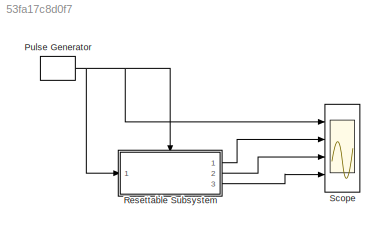
MODEL slx_53fa17c8d0f7
KIND model
CONFIG AbsTol = auto
CONFIG FixedStep = 1
CONFIG MaxStep = auto
CONFIG MinStep = auto
CONFIG RelTol = 1e-3
CONFIG SampleTimeConstraint = Unconstrained
CONFIG Solver = FixedStepDiscrete
CONFIG SolverMode = SingleTasking
CONFIG SolverName = FixedStepDiscrete
CONFIG StartTime = 0.0
CONFIG StopTime = 100
BLOCK [DiscretePulseGenerator] Pulse Generator
  AttributesFormatString = Period: %<period>\nDuty cycle: %<pulsewidth>%
  Period = 4
  Ports = [0, 1]
  PulseWidth = 2
  SampleTime = -1
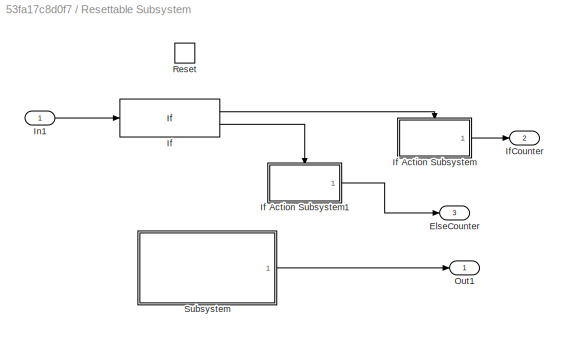
BLOCK [SubSystem] Resettable Subsystem
  Ports = [1, 3, 0, 0, 0, 0, 0, 0, 1]
  RequestExecContextInheritance = off
  TreatAsAtomicUnit = on
  Variant = off
BLOCK [Outport] Resettable Subsystem/ElseCounter
  IconDisplay = Port number
  Port = 3
BLOCK [If] Resettable Subsystem/If
  IfExpression = u1
  Ports = [1, 2]
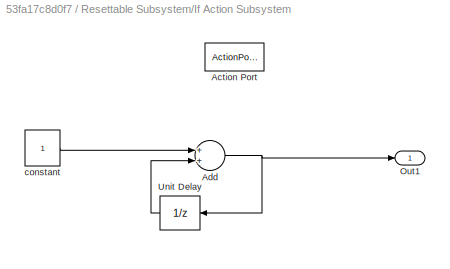
BLOCK [SubSystem] Resettable Subsystem/If Action Subsystem
  Ports = [0, 1, 0, 0, 0, 0, 0, 1]
  RequestExecContextInheritance = off
  TreatAsAtomicUnit = on
  Variant = off
BLOCK [ActionPort] Resettable Subsystem/If Action Subsystem/Action Port
  ActionType = then
BLOCK [Sum] Resettable Subsystem/If Action Subsystem/Add
  InputSameDT = off
  OutDataTypeStr = Inherit: Inherit via internal rule
  Ports = [2, 1]
  SaturateOnIntegerOverflow = off
BLOCK [Outport] Resettable Subsystem/If Action Subsystem/Out1
  IconDisplay = Port number
  InitialOutput = 0
BLOCK [UnitDelay] Resettable Subsystem/If Action Subsystem/Unit Delay
  InputProcessing = Elements as channels (sample based)
  SampleTime = -1
BLOCK [Constant] Resettable Subsystem/If Action Subsystem/constant
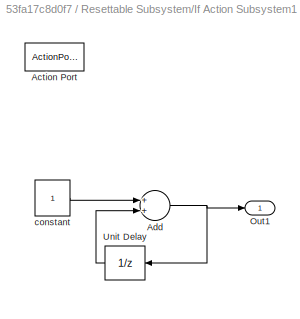
BLOCK [SubSystem] Resettable Subsystem/If Action Subsystem1
  Ports = [0, 1, 0, 0, 0, 0, 0, 1]
  RequestExecContextInheritance = off
  TreatAsAtomicUnit = on
  Variant = off
BLOCK [ActionPort] Resettable Subsystem/If Action Subsystem1/Action Port
  ActionType = else
BLOCK [Sum] Resettable Subsystem/If Action Subsystem1/Add
  InputSameDT = off
  OutDataTypeStr = Inherit: Inherit via internal rule
  Ports = [2, 1]
  SaturateOnIntegerOverflow = off
BLOCK [Outport] Resettable Subsystem/If Action Subsystem1/Out1
  IconDisplay = Port number
BLOCK [UnitDelay] Resettable Subsystem/If Action Subsystem1/Unit Delay
  InputProcessing = Elements as channels (sample based)
  SampleTime = -1
BLOCK [Constant] Resettable Subsystem/If Action Subsystem1/constant
BLOCK [Outport] Resettable Subsystem/IfCounter
  IconDisplay = Port number
  Port = 2
BLOCK [Inport] Resettable Subsystem/In1
  IconDisplay = Port number
BLOCK [Outport] Resettable Subsystem/Out1
  IconDisplay = Port number
BLOCK [ResetPort] Resettable Subsystem/Reset
  DisableCoverage = on
  ResetTriggerType = either
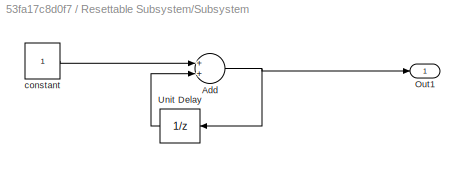
BLOCK [SubSystem] Resettable Subsystem/Subsystem
  Ports = [0, 1]
  RequestExecContextInheritance = off
  TreatAsAtomicUnit = on
  Variant = off
BLOCK [Sum] Resettable Subsystem/Subsystem/Add
  InputSameDT = off
  OutDataTypeStr = Inherit: Inherit via internal rule
  Ports = [2, 1]
  SaturateOnIntegerOverflow = off
BLOCK [Outport] Resettable Subsystem/Subsystem/Out1
  IconDisplay = Port number
BLOCK [UnitDelay] Resettable Subsystem/Subsystem/Unit Delay
  InputProcessing = Elements as channels (sample based)
  SampleTime = -1
BLOCK [Constant] Resettable Subsystem/Subsystem/constant
BLOCK [Scope] Scope
  DataFormat = StructureWithTime
  Decimation = 1
  Grid = on
  LimitDataPoints = off
  MaxDataPoints = 5000
  NumInputPorts = 4
  Ports = [4]
  SampleInput = off
  SampleTime = -1
  SaveName = ScopeData
  SaveToWorkspace = off
  ShowLegends = off
  TickLabels = OneTimeTick
  TimeRange = auto
  YMax = 1.125~2.125~57.25~56.25
  YMin = -0.125~0.875~-5.25~-6.25
  ZoomMode = on
NET Pulse Generator:1 -> Resettable Subsystem:1, Resettable Subsystem:Reset, Scope:1
NET Resettable Subsystem/If Action Subsystem/Add:1 -> Resettable Subsystem/If Action Subsystem/Out1:1, Resettable Subsystem/If Action Subsystem/Unit Delay:1
LINE Resettable Subsystem/If Action Subsystem/Unit Delay:1 -> Resettable Subsystem/If Action Subsystem/Add:2
LINE Resettable Subsystem/If Action Subsystem/constant:1 -> Resettable Subsystem/If Action Subsystem/Add:1
NET Resettable Subsystem/If Action Subsystem1/Add:1 -> Resettable Subsystem/If Action Subsystem1/Out1:1, Resettable Subsystem/If Action Subsystem1/Unit Delay:1
LINE Resettable Subsystem/If Action Subsystem1/Unit Delay:1 -> Resettable Subsystem/If Action Subsystem1/Add:2
LINE Resettable Subsystem/If Action Subsystem1/constant:1 -> Resettable Subsystem/If Action Subsystem1/Add:1
LINE Resettable Subsystem/If Action Subsystem1:1 -> Resettable Subsystem/ElseCounter:1
LINE Resettable Subsystem/If Action Subsystem:1 -> Resettable Subsystem/IfCounter:1
LINE Resettable Subsystem/If:1 -> Resettable Subsystem/If Action Subsystem:ifaction
LINE Resettable Subsystem/If:2 -> Resettable Subsystem/If Action Subsystem1:ifaction
LINE Resettable Subsystem/In1:1 -> Resettable Subsystem/If:1
NET Resettable Subsystem/Subsystem/Add:1 -> Resettable Subsystem/Subsystem/Out1:1, Resettable Subsystem/Subsystem/Unit Delay:1
LINE Resettable Subsystem/Subsystem/Unit Delay:1 -> Resettable Subsystem/Subsystem/Add:2
LINE Resettable Subsystem/Subsystem/constant:1 -> Resettable Subsystem/Subsystem/Add:1
LINE Resettable Subsystem/Subsystem:1 -> Resettable Subsystem/Out1:1
LINE Resettable Subsystem:1 -> Scope:2
LINE Resettable Subsystem:2 -> Scope:3
LINE Resettable Subsystem:3 -> Scope:4
note: NET lines group one-source signal fan-out (src -> all destinations, sorted); 1:1 wires keep LINE
